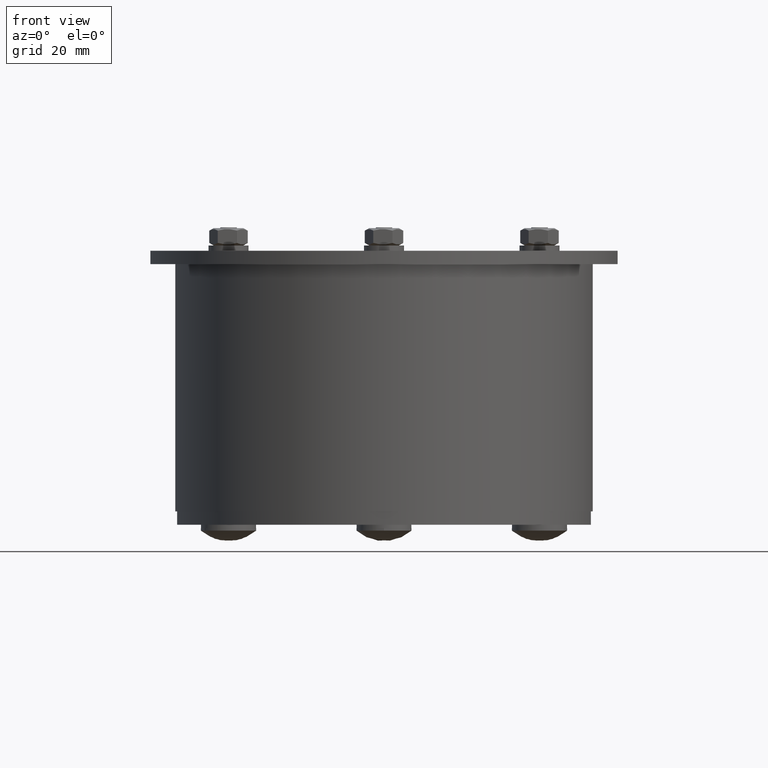
[diagram: clean part render]
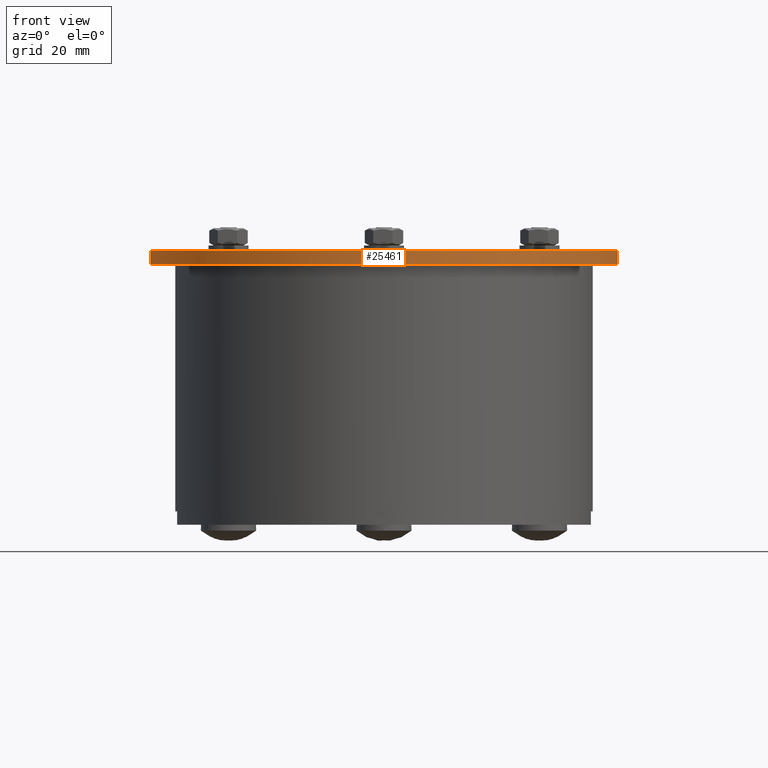
[diagram: same view with one face highlighted and labeled with its STEP entity id]
A machine part, front view. The second image highlights one B-rep face of the part: STEP entity #25461.
In plain terms, the highlighted cylindrical surface (partial cylindrical patch) has radius 70 mm, axis along (0, 0, -1).
Its self-contained STEP definition (entity closure, byte-faithful):
#25094=CARTESIAN_POINT('',(69.931843982324438,3.088235294117641,-4.0));
#25095=VERTEX_POINT('',#25094);
#25103=CARTESIAN_POINT('',(69.931843982324438,3.088235294117641,0.0));
#25104=VERTEX_POINT('',#25103);
#25105=CARTESIAN_POINT('',(69.931843982324423,3.088235294117641,-4.0));
#25106=DIRECTION('',(0.0,0.0,1.0));
#25107=VECTOR('',#25106,4.0);
#25108=LINE('',#25105,#25107);
#25109=EDGE_CURVE('',#25095,#25104,#25108,.T.);
#25166=CARTESIAN_POINT('',(-69.931843982324438,3.08823529411764,0.0));
#25167=VERTEX_POINT('',#25166);
#25168=CARTESIAN_POINT('',(0.0,0.0,0.0));
#25169=DIRECTION('',(0.0,0.0,-1.0));
#25170=DIRECTION('',(-0.999897953976978,-0.014285714285714,0.0));
#25171=AXIS2_PLACEMENT_3D('',#25168,#25169,#25170);
#25172=CIRCLE('',#25171,70.0);
#25173=EDGE_CURVE('',#25167,#25104,#25172,.T.);
#25364=CARTESIAN_POINT('',(-69.931843982324438,3.08823529411764,-4.0));
#25365=VERTEX_POINT('',#25364);
#25375=CARTESIAN_POINT('',(-69.931843982324423,3.088235294117639,0.0));
#25376=DIRECTION('',(0.0,0.0,-1.0));
#25377=VECTOR('',#25376,4.0);
#25378=LINE('',#25375,#25377);
#25379=EDGE_CURVE('',#25167,#25365,#25378,.T.);
#25444=CARTESIAN_POINT('',(0.0,0.0,0.0));
#25445=DIRECTION('',(0.0,0.0,-1.0));
#25446=DIRECTION('',(-0.999897953976978,-0.014285714285714,0.0));
#25447=AXIS2_PLACEMENT_3D('',#25444,#25445,#25446);
#25448=CYLINDRICAL_SURFACE('',#25447,70.0);
#25449=ORIENTED_EDGE('',*,*,#25109,.F.);
#25450=CARTESIAN_POINT('',(0.0,0.0,-4.0));
#25451=DIRECTION('',(0.0,0.0,-1.0));
#25452=DIRECTION('',(-0.999897953976978,-0.014285714285714,0.0));
#25453=AXIS2_PLACEMENT_3D('',#25450,#25451,#25452);
#25454=CIRCLE('',#25453,70.0);
#25455=EDGE_CURVE('',#25365,#25095,#25454,.T.);
#25456=ORIENTED_EDGE('',*,*,#25455,.F.);
#25457=ORIENTED_EDGE('',*,*,#25379,.F.);
#25458=ORIENTED_EDGE('',*,*,#25173,.T.);
#25459=EDGE_LOOP('',(#25449,#25456,#25457,#25458));
#25460=FACE_OUTER_BOUND('',#25459,.T.);
#25461=ADVANCED_FACE('',(#25460),#25448,.T.);